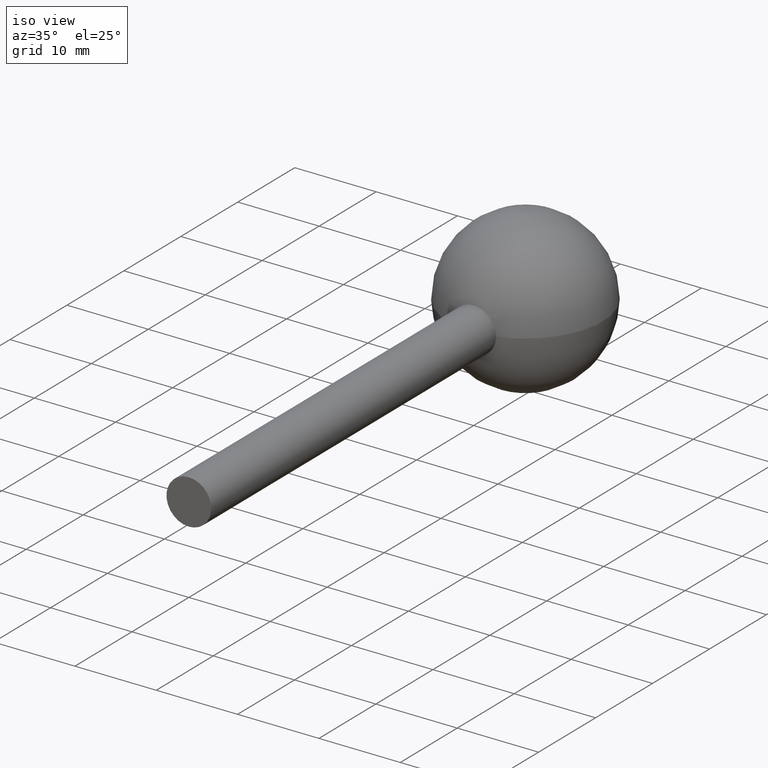
[diagram: clean part render]
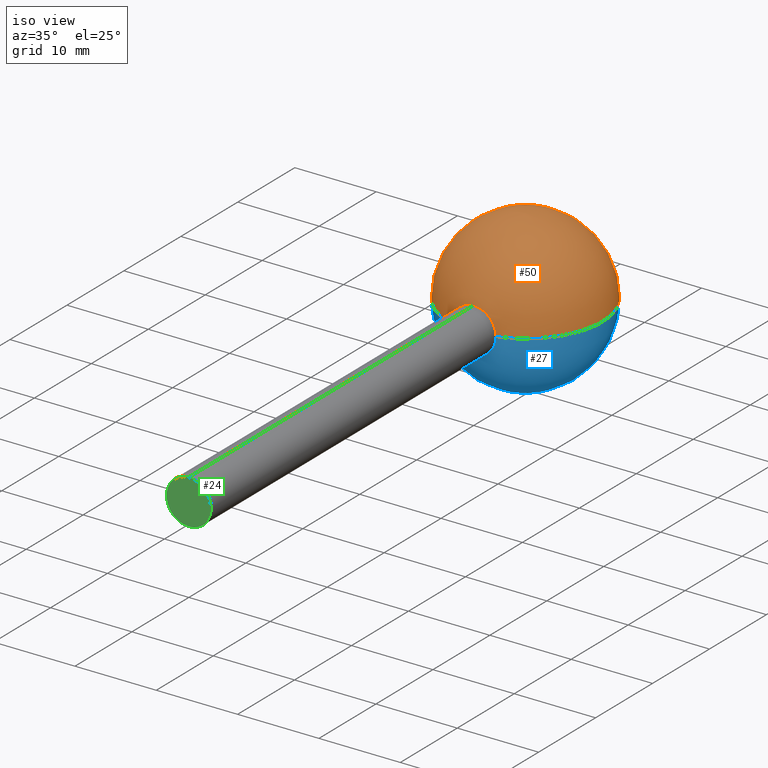
[diagram: same view with three faces highlighted in distinct colors, each labeled with its STEP entity id]
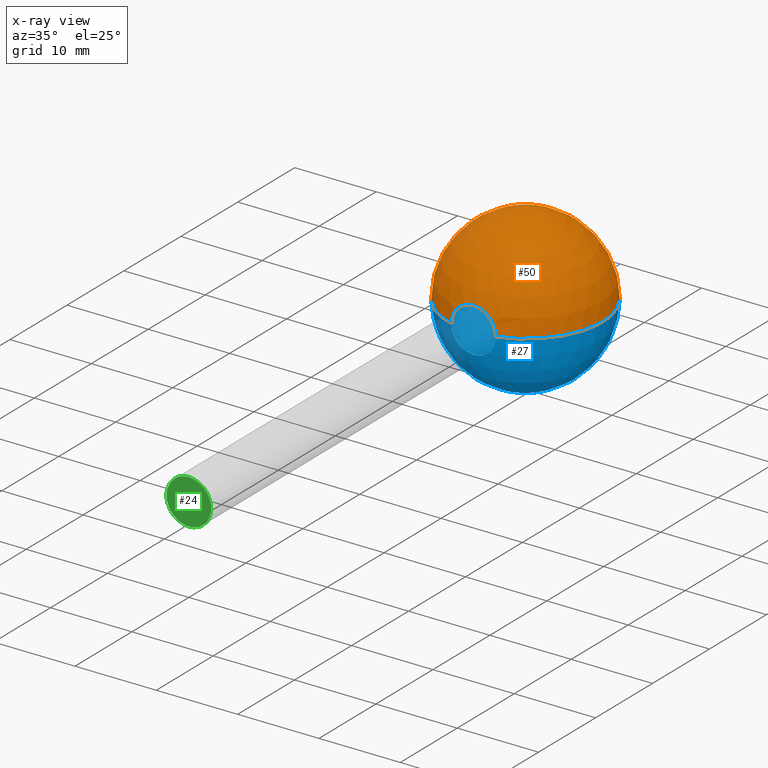
[diagram: x-ray of the same camera — body ghosted, the three highlighted faces saturated]
A machine part, iso view with three faces highlighted in distinct colors.
The next image is the same camera in x-ray (body ghosted, the three faces saturated) — at least one of them is partly hidden behind the body in this view.
Their STEP definitions:

[orange] entity #50 — the highlighted spherical surface has radius 9.5 mm.
#3 = EDGE_CURVE ( 'NONE', #199, #202, #114, .T. ) ;
#16 = ORIENTED_EDGE ( 'NONE', *, *, #210, .F. ) ;
#18 = CIRCLE ( 'NONE', #138, 9.499999999999991100 ) ;
#19 = CIRCLE ( 'NONE', #68, 2.750000000000004900 ) ;
#21 = EDGE_CURVE ( 'NONE', #199, #174, #18, .T. ) ;
#31 = EDGE_CURVE ( 'NONE', #137, #202, #215, .T. ) ;
#50 = ADVANCED_FACE ( 'NONE', ( #211 ), #206, .T. ) ;
#56 = AXIS2_PLACEMENT_3D ( 'NONE', #197, #209, #191 ) ;
#63 = ORIENTED_EDGE ( 'NONE', *, *, #21, .F. ) ;
#68 = AXIS2_PLACEMENT_3D ( 'NONE', #127, #126, #125 ) ;
#70 = AXIS2_PLACEMENT_3D ( 'NONE', #195, #194, #193 ) ;
#71 = ORIENTED_EDGE ( 'NONE', *, *, #31, .F. ) ;
#80 = ORIENTED_EDGE ( 'NONE', *, *, #3, .T. ) ;
#114 = CIRCLE ( 'NONE', #187, 9.499999999999991100 ) ;
#122 = CARTESIAN_POINT ( 'NONE',  ( 2.750000000000007500, 50.00000000000001400, -3.367778697655230400E-016 ) ) ;
#125 = DIRECTION ( 'NONE',  ( 0.0000000000000000000, 0.0000000000000000000, -1.000000000000000000 ) ) ;
#126 = DIRECTION ( 'NONE',  ( -0.0000000000000000000, -1.000000000000000000, -0.0000000000000000000 ) ) ;
#127 = CARTESIAN_POINT ( 'NONE',  ( 0.0000000000000000000, 50.00000000000001400, 0.0000000000000000000 ) ) ;
#130 = CARTESIAN_POINT ( 'NONE',  ( 0.0000000000000000000, 59.09326673973661300, 0.0000000000000000000 ) ) ;
#136 = DIRECTION ( 'NONE',  ( -1.000000000000000000, 0.0000000000000000000, 1.224646799147353200E-016 ) ) ;
#137 = VERTEX_POINT ( 'NONE', #179 ) ;
#138 = AXIS2_PLACEMENT_3D ( 'NONE', #130, #160, #136 ) ;
#141 = CARTESIAN_POINT ( 'NONE',  ( -2.750000000000007500, 50.00000000000001400, 0.0000000000000000000 ) ) ;
#152 = CARTESIAN_POINT ( 'NONE',  ( -5.817072295949922500E-016, 68.59326673973660600, 0.0000000000000000000 ) ) ;
#160 = DIRECTION ( 'NONE',  ( -1.224646799147353200E-016, 0.0000000000000000000, -1.000000000000000000 ) ) ;
#174 = VERTEX_POINT ( 'NONE', #122 ) ;
#178 = EDGE_LOOP ( 'NONE', ( #63, #80, #71, #16 ) ) ;
#179 = CARTESIAN_POINT ( 'NONE',  ( 3.367778697655227400E-016, 50.00000000000001400, 2.750000000000004900 ) ) ;
#181 = DIRECTION ( 'NONE',  ( 1.000000000000000000, 0.0000000000000000000, 0.0000000000000000000 ) ) ;
#187 = AXIS2_PLACEMENT_3D ( 'NONE', #200, #218, #181 ) ;
#191 = DIRECTION ( 'NONE',  ( -1.000000000000000000, 0.0000000000000000000, 0.0000000000000000000 ) ) ;
#193 = DIRECTION ( 'NONE',  ( 0.0000000000000000000, 0.0000000000000000000, -1.000000000000000000 ) ) ;
#194 = DIRECTION ( 'NONE',  ( -0.0000000000000000000, -1.000000000000000000, -0.0000000000000000000 ) ) ;
#195 = CARTESIAN_POINT ( 'NONE',  ( 0.0000000000000000000, 50.00000000000001400, 0.0000000000000000000 ) ) ;
#197 = CARTESIAN_POINT ( 'NONE',  ( 0.0000000000000000000, 59.09326673973661300, 0.0000000000000000000 ) ) ;
#199 = VERTEX_POINT ( 'NONE', #152 ) ;
#200 = CARTESIAN_POINT ( 'NONE',  ( 0.0000000000000000000, 59.09326673973661300, 0.0000000000000000000 ) ) ;
#202 = VERTEX_POINT ( 'NONE', #141 ) ;
#206 = SPHERICAL_SURFACE ( 'NONE', #56, 9.499999999999991100 ) ;
#209 = DIRECTION ( 'NONE',  ( -0.0000000000000000000, -0.0000000000000000000, -1.000000000000000000 ) ) ;
#210 = EDGE_CURVE ( 'NONE', #174, #137, #19, .T. ) ;
#211 = FACE_OUTER_BOUND ( 'NONE', #178, .T. ) ;
#215 = CIRCLE ( 'NONE', #70, 2.750000000000004900 ) ;
#218 = DIRECTION ( 'NONE',  ( -0.0000000000000000000, 0.0000000000000000000, 1.000000000000000000 ) ) ;

[blue] entity #27 — the highlighted spherical surface has radius 9.5 mm.
#3 = EDGE_CURVE ( 'NONE', #199, #202, #114, .T. ) ;
#18 = CIRCLE ( 'NONE', #138, 9.499999999999991100 ) ;
#21 = EDGE_CURVE ( 'NONE', #199, #174, #18, .T. ) ;
#26 = EDGE_CURVE ( 'NONE', #202, #104, #62, .T. ) ;
#27 = ADVANCED_FACE ( 'NONE', ( #170 ), #192, .T. ) ;
#52 = AXIS2_PLACEMENT_3D ( 'NONE', #164, #162, #161 ) ;
#62 = CIRCLE ( 'NONE', #108, 2.750000000000004900 ) ;
#65 = DIRECTION ( 'NONE',  ( -0.0000000000000000000, -0.0000000000000000000, -1.000000000000000000 ) ) ;
#72 = ORIENTED_EDGE ( 'NONE', *, *, #21, .T. ) ;
#73 = ORIENTED_EDGE ( 'NONE', *, *, #3, .F. ) ;
#75 = ORIENTED_EDGE ( 'NONE', *, *, #26, .F. ) ;
#77 = AXIS2_PLACEMENT_3D ( 'NONE', #132, #65, #213 ) ;
#87 = EDGE_LOOP ( 'NONE', ( #73, #72, #140, #75 ) ) ;
#104 = VERTEX_POINT ( 'NONE', #168 ) ;
#108 = AXIS2_PLACEMENT_3D ( 'NONE', #219, #217, #214 ) ;
#114 = CIRCLE ( 'NONE', #187, 9.499999999999991100 ) ;
#122 = CARTESIAN_POINT ( 'NONE',  ( 2.750000000000007500, 50.00000000000001400, -3.367778697655230400E-016 ) ) ;
#130 = CARTESIAN_POINT ( 'NONE',  ( 0.0000000000000000000, 59.09326673973661300, 0.0000000000000000000 ) ) ;
#132 = CARTESIAN_POINT ( 'NONE',  ( 0.0000000000000000000, 59.09326673973661300, 0.0000000000000000000 ) ) ;
#136 = DIRECTION ( 'NONE',  ( -1.000000000000000000, 0.0000000000000000000, 1.224646799147353200E-016 ) ) ;
#138 = AXIS2_PLACEMENT_3D ( 'NONE', #130, #160, #136 ) ;
#140 = ORIENTED_EDGE ( 'NONE', *, *, #150, .F. ) ;
#141 = CARTESIAN_POINT ( 'NONE',  ( -2.750000000000007500, 50.00000000000001400, 0.0000000000000000000 ) ) ;
#150 = EDGE_CURVE ( 'NONE', #104, #174, #156, .T. ) ;
#152 = CARTESIAN_POINT ( 'NONE',  ( -5.817072295949922500E-016, 68.59326673973660600, 0.0000000000000000000 ) ) ;
#156 = CIRCLE ( 'NONE', #52, 2.750000000000004900 ) ;
#160 = DIRECTION ( 'NONE',  ( -1.224646799147353200E-016, 0.0000000000000000000, -1.000000000000000000 ) ) ;
#161 = DIRECTION ( 'NONE',  ( 0.0000000000000000000, 0.0000000000000000000, -1.000000000000000000 ) ) ;
#162 = DIRECTION ( 'NONE',  ( -0.0000000000000000000, -1.000000000000000000, -0.0000000000000000000 ) ) ;
#164 = CARTESIAN_POINT ( 'NONE',  ( 0.0000000000000000000, 50.00000000000001400, 0.0000000000000000000 ) ) ;
#168 = CARTESIAN_POINT ( 'NONE',  ( 0.0000000000000000000, 50.00000000000001400, -2.750000000000004900 ) ) ;
#170 = FACE_OUTER_BOUND ( 'NONE', #87, .T. ) ;
#174 = VERTEX_POINT ( 'NONE', #122 ) ;
#181 = DIRECTION ( 'NONE',  ( 1.000000000000000000, 0.0000000000000000000, 0.0000000000000000000 ) ) ;
#187 = AXIS2_PLACEMENT_3D ( 'NONE', #200, #218, #181 ) ;
#192 = SPHERICAL_SURFACE ( 'NONE', #77, 9.499999999999991100 ) ;
#199 = VERTEX_POINT ( 'NONE', #152 ) ;
#200 = CARTESIAN_POINT ( 'NONE',  ( 0.0000000000000000000, 59.09326673973661300, 0.0000000000000000000 ) ) ;
#202 = VERTEX_POINT ( 'NONE', #141 ) ;
#213 = DIRECTION ( 'NONE',  ( -1.000000000000000000, 0.0000000000000000000, 0.0000000000000000000 ) ) ;
#214 = DIRECTION ( 'NONE',  ( 0.0000000000000000000, 0.0000000000000000000, -1.000000000000000000 ) ) ;
#217 = DIRECTION ( 'NONE',  ( -0.0000000000000000000, -1.000000000000000000, -0.0000000000000000000 ) ) ;
#218 = DIRECTION ( 'NONE',  ( -0.0000000000000000000, 0.0000000000000000000, 1.000000000000000000 ) ) ;
#219 = CARTESIAN_POINT ( 'NONE',  ( 0.0000000000000000000, 50.00000000000001400, 0.0000000000000000000 ) ) ;

[green] entity #24 — the highlighted planar face has unit normal (0, 1, 0).
#11 = ORIENTED_EDGE ( 'NONE', *, *, #28, .T. ) ;
#24 = ADVANCED_FACE ( 'NONE', ( #83 ), #176, .F. ) ;
#28 = EDGE_CURVE ( 'NONE', #220, #175, #212, .T. ) ;
#35 = AXIS2_PLACEMENT_3D ( 'NONE', #120, #118, #117 ) ;
#47 = EDGE_LOOP ( 'NONE', ( #97, #11 ) ) ;
#82 = AXIS2_PLACEMENT_3D ( 'NONE', #204, #203, #198 ) ;
#83 = FACE_OUTER_BOUND ( 'NONE', #47, .T. ) ;
#97 = ORIENTED_EDGE ( 'NONE', *, *, #216, .T. ) ;
#106 = AXIS2_PLACEMENT_3D ( 'NONE', #149, #221, #159 ) ;
#117 = DIRECTION ( 'NONE',  ( 0.0000000000000000000, 0.0000000000000000000, -1.000000000000000000 ) ) ;
#118 = DIRECTION ( 'NONE',  ( -0.0000000000000000000, -1.000000000000000000, -0.0000000000000000000 ) ) ;
#120 = CARTESIAN_POINT ( 'NONE',  ( 0.0000000000000000000, -3.367778697655221000E-016, 0.0000000000000000000 ) ) ;
#135 = CARTESIAN_POINT ( 'NONE',  ( 3.367778697655223000E-016, -3.367778697655221000E-016, 2.750000000000000000 ) ) ;
#149 = CARTESIAN_POINT ( 'NONE',  ( 0.0000000000000000000, -1.683889348827610500E-016, 0.0000000000000000000 ) ) ;
#158 = CARTESIAN_POINT ( 'NONE',  ( 0.0000000000000000000, -3.367778697655221000E-016, -2.750000000000000000 ) ) ;
#159 = DIRECTION ( 'NONE',  ( 0.0000000000000000000, -0.0000000000000000000, 1.000000000000000000 ) ) ;
#172 = CIRCLE ( 'NONE', #35, 2.750000000000000000 ) ;
#175 = VERTEX_POINT ( 'NONE', #158 ) ;
#176 = PLANE ( 'NONE',  #106 ) ;
#198 = DIRECTION ( 'NONE',  ( 0.0000000000000000000, 0.0000000000000000000, -1.000000000000000000 ) ) ;
#203 = DIRECTION ( 'NONE',  ( -0.0000000000000000000, -1.000000000000000000, -0.0000000000000000000 ) ) ;
#204 = CARTESIAN_POINT ( 'NONE',  ( 0.0000000000000000000, -3.367778697655221000E-016, 0.0000000000000000000 ) ) ;
#212 = CIRCLE ( 'NONE', #82, 2.750000000000000000 ) ;
#216 = EDGE_CURVE ( 'NONE', #175, #220, #172, .T. ) ;
#220 = VERTEX_POINT ( 'NONE', #135 ) ;
#221 = DIRECTION ( 'NONE',  ( 0.0000000000000000000, 1.000000000000000000, 0.0000000000000000000 ) ) ;